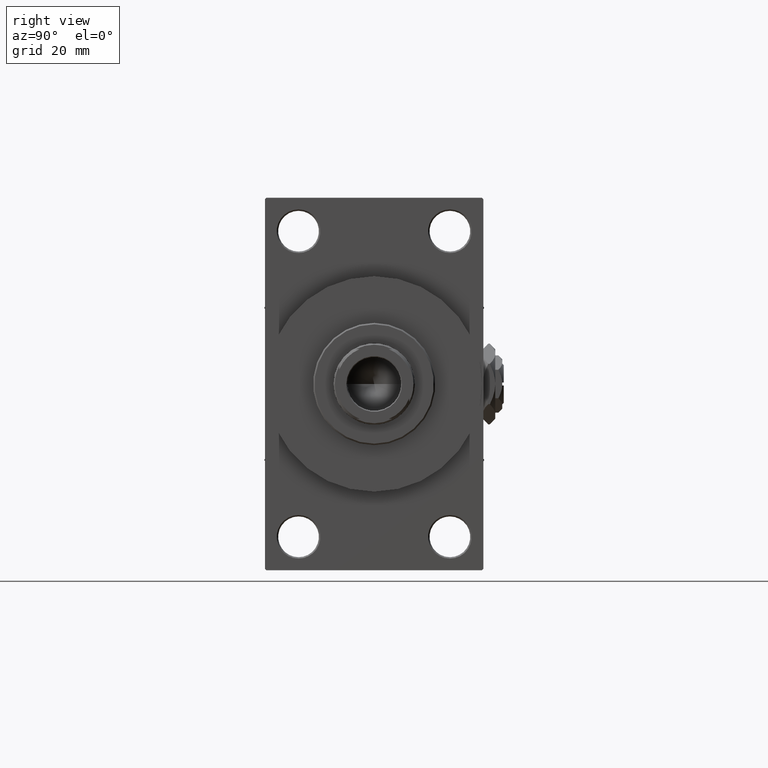
[diagram: clean part render]
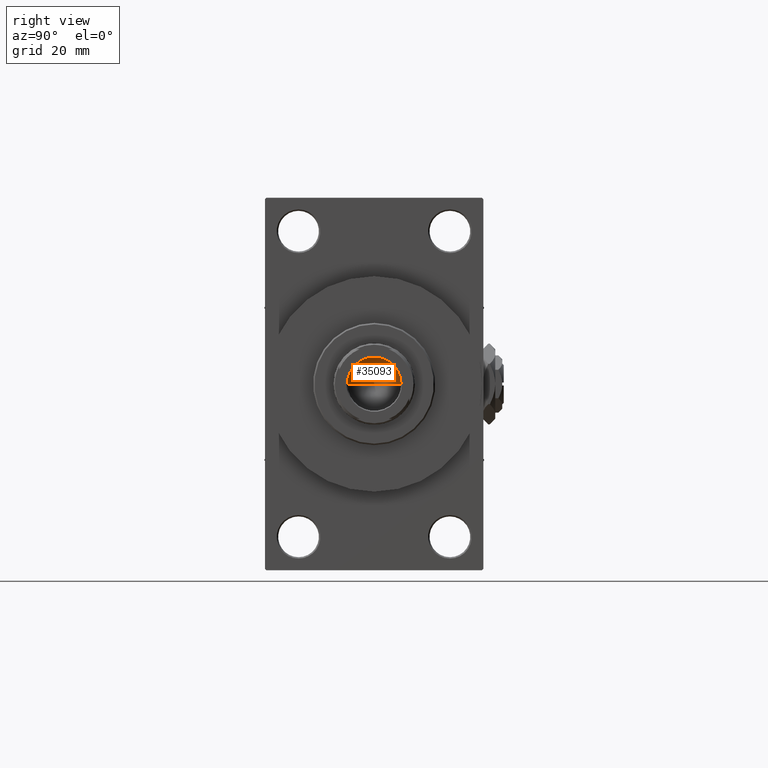
[diagram: same view with one face highlighted and labeled with its STEP entity id]
A machine part, right view. The second image highlights one B-rep face of the part: STEP entity #35093.
In plain terms, the highlighted conical surface has half-angle 59 deg.
Its self-contained STEP definition (entity closure, byte-faithful):
#332 = EDGE_CURVE ( 'NONE', #28517, #36462, #28240, .T. ) ;
#1675 = CIRCLE ( 'NONE', #11246, 9.249999999999992895 ) ;
#3608 = DIRECTION ( 'NONE',  ( -0.8571673007021117785, 1.049727191138617956E-16, 0.5150380749100550437 ) ) ;
#4834 = DIRECTION ( 'NONE',  ( -0.000000000000000000, -0.000000000000000000, 1.000000000000000000 ) ) ;
#5766 = EDGE_CURVE ( 'NONE', #28517, #41752, #37779, .T. ) ;
#8586 = FACE_OUTER_BOUND ( 'NONE', #27378, .T. ) ;
#8793 = CARTESIAN_POINT ( 'NONE',  ( 9.249999999999992895, 0.000000000000000000, 112.0000000000000142 ) ) ;
#11246 = AXIS2_PLACEMENT_3D ( 'NONE', #21727, #30177, #26181 ) ;
#18603 = CARTESIAN_POINT ( 'NONE',  ( -9.249999999999992895, 1.132798289211300712E-15, 112.0000000000000142 ) ) ;
#20071 = DIRECTION ( 'NONE',  ( 1.000000000000000000, 0.000000000000000000, 0.000000000000000000 ) ) ;
#21727 = CARTESIAN_POINT ( 'NONE',  ( 0.000000000000000000, 0.000000000000000000, 112.0000000000000142 ) ) ;
#25679 = CARTESIAN_POINT ( 'NONE',  ( -9.769621978240258809E-15, 0.000000000000000000, 106.4420392739950785 ) ) ;
#25777 = VECTOR ( 'NONE', #3608, 1000.000000000000000 ) ;
#26181 = DIRECTION ( 'NONE',  ( 1.000000000000000000, 0.000000000000000000, 0.000000000000000000 ) ) ;
#27064 = VECTOR ( 'NONE', #39210, 1000.000000000000000 ) ;
#27378 = EDGE_LOOP ( 'NONE', ( #30091, #28676, #34759 ) ) ;
#27868 = CARTESIAN_POINT ( 'NONE',  ( 9.249999999999992895, 0.000000000000000000, 112.0000000000000142 ) ) ;
#28240 = LINE ( 'NONE', #8793, #27064 ) ;
#28489 = CARTESIAN_POINT ( 'NONE',  ( -9.249999999999992895, 1.132798289211300712E-15, 112.0000000000000142 ) ) ;
#28517 = VERTEX_POINT ( 'NONE', #25679 ) ;
#28676 = ORIENTED_EDGE ( 'NONE', *, *, #5766, .T. ) ;
#30091 = ORIENTED_EDGE ( 'NONE', *, *, #332, .F. ) ;
#30177 = DIRECTION ( 'NONE',  ( -0.000000000000000000, -0.000000000000000000, 1.000000000000000000 ) ) ;
#34038 = CONICAL_SURFACE ( 'NONE', #36420, 9.249999999999992895, 1.029744258676653423 ) ;
#34655 = EDGE_CURVE ( 'NONE', #41752, #36462, #1675, .T. ) ;
#34759 = ORIENTED_EDGE ( 'NONE', *, *, #34655, .T. ) ;
#35093 = ADVANCED_FACE ( 'NONE', ( #8586 ), #34038, .F. ) ;
#36420 = AXIS2_PLACEMENT_3D ( 'NONE', #39006, #4834, #20071 ) ;
#36462 = VERTEX_POINT ( 'NONE', #27868 ) ;
#37779 = LINE ( 'NONE', #18603, #25777 ) ;
#39006 = CARTESIAN_POINT ( 'NONE',  ( 0.000000000000000000, 0.000000000000000000, 112.0000000000000142 ) ) ;
#39210 = DIRECTION ( 'NONE',  ( 0.8571673007021117785, 0.000000000000000000, 0.5150380749100550437 ) ) ;
#41752 = VERTEX_POINT ( 'NONE', #28489 ) ;